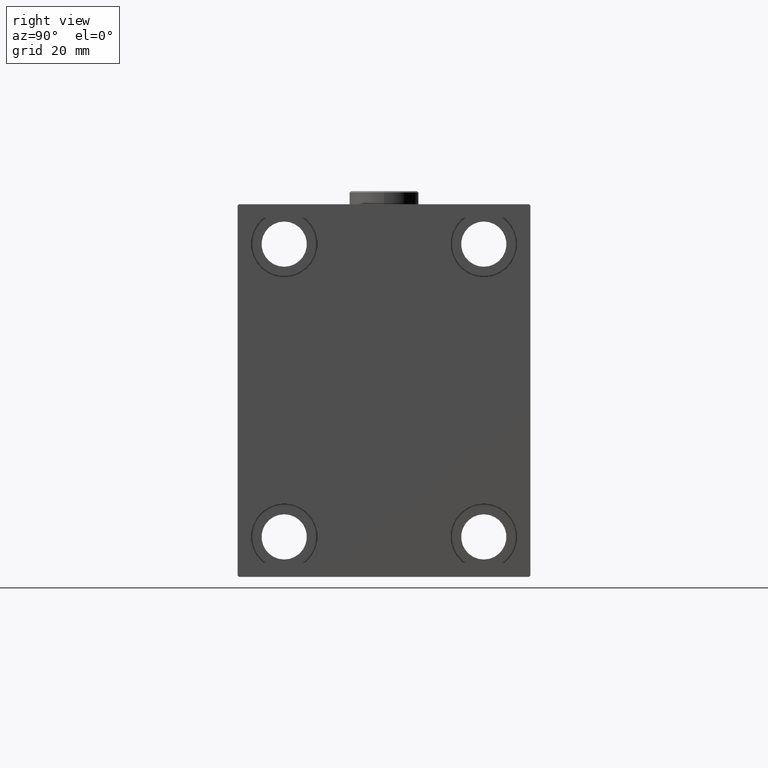
[diagram: clean part render]
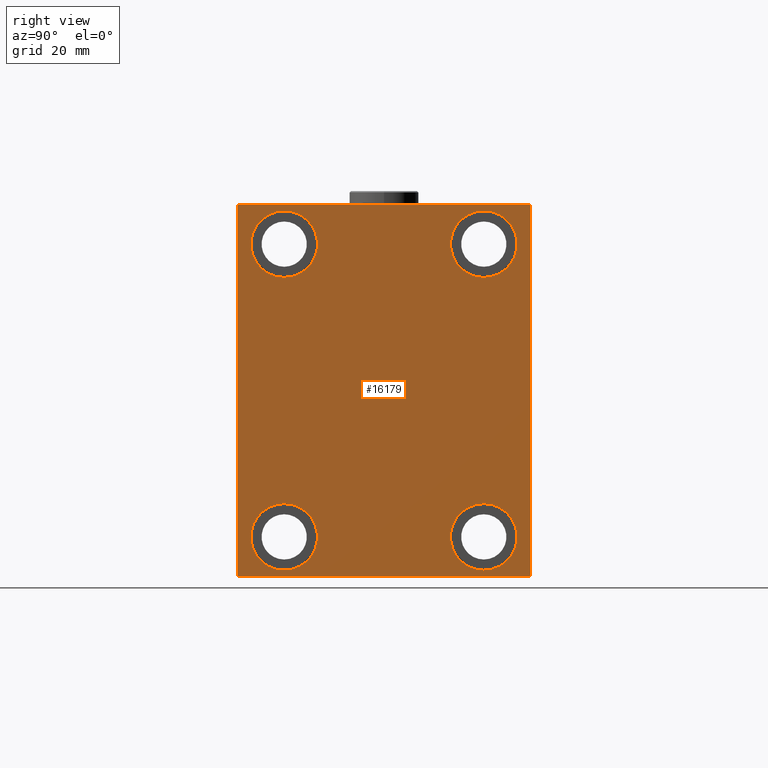
[diagram: same view with one face highlighted and labeled with its STEP entity id]
A machine part, right view. The second image highlights one B-rep face of the part: STEP entity #16179.
In plain terms, the highlighted planar face has unit normal (1, 0, 0).
Its self-contained STEP definition (entity closure, byte-faithful):
#51 = DIRECTION ( 'NONE',  ( -1.000000000000000000, -0.000000000000000000, -0.000000000000000000 ) ) ;
#367 = EDGE_CURVE ( 'NONE', #10291, #41472, #9608, .T. ) ;
#596 = LINE ( 'NONE', #32490, #21334 ) ;
#645 = ORIENTED_EDGE ( 'NONE', *, *, #13586, .T. ) ;
#849 = CARTESIAN_POINT ( 'NONE',  ( 133.0000000000000000, -37.50000000000000711, 67.50000000000000000 ) ) ;
#1073 = CARTESIAN_POINT ( 'NONE',  ( 133.0000000000000000, 37.50000000000000711, 42.50000000000000711 ) ) ;
#1373 = VECTOR ( 'NONE', #1888, 1000.000000000000000 ) ;
#1504 = CARTESIAN_POINT ( 'NONE',  ( 133.0000000000000000, 62.24999999999997868, 62.24999999999997868 ) ) ;
#1557 = CARTESIAN_POINT ( 'NONE',  ( 133.0000000000000000, 54.99999999999999289, 69.49999999999997158 ) ) ;
#1888 = DIRECTION ( 'NONE',  ( 0.000000000000000000, 1.000000000000000000, 2.523234146875355012E-16 ) ) ;
#1948 = DIRECTION ( 'NONE',  ( 0.000000000000000000, -1.982541115402065110E-16, 1.000000000000000000 ) ) ;
#1999 = CARTESIAN_POINT ( 'NONE',  ( 133.0000000000000000, -62.25000000000078160, -62.24999999999904787 ) ) ;
#2105 = ORIENTED_EDGE ( 'NONE', *, *, #43249, .T. ) ;
#2840 = DIRECTION ( 'NONE',  ( 0.000000000000000000, 0.000000000000000000, 1.000000000000000000 ) ) ;
#2938 = EDGE_CURVE ( 'NONE', #37144, #25257, #34096, .T. ) ;
#3545 = DIRECTION ( 'NONE',  ( -1.000000000000000000, -0.000000000000000000, -0.000000000000000000 ) ) ;
#3804 = ORIENTED_EDGE ( 'NONE', *, *, #42134, .T. ) ;
#4181 = VECTOR ( 'NONE', #32489, 1000.000000000000000 ) ;
#4626 = CARTESIAN_POINT ( 'NONE',  ( 133.0000000000000000, 0.000000000000000000, 0.000000000000000000 ) ) ;
#4860 = DIRECTION ( 'NONE',  ( 1.000000000000000000, 0.000000000000000000, 0.000000000000000000 ) ) ;
#4914 = EDGE_CURVE ( 'NONE', #42794, #21232, #30485, .T. ) ;
#5628 = CARTESIAN_POINT ( 'NONE',  ( 133.0000000000000000, 54.49999999999996447, 70.00000000000000000 ) ) ;
#6088 = CIRCLE ( 'NONE', #15180, 12.49999999999999645 ) ;
#6800 = ORIENTED_EDGE ( 'NONE', *, *, #26278, .T. ) ;
#7027 = DIRECTION ( 'NONE',  ( 0.000000000000000000, -0.7071067811865474617, -0.7071067811865474617 ) ) ;
#7832 = VERTEX_POINT ( 'NONE', #8106 ) ;
#8106 = CARTESIAN_POINT ( 'NONE',  ( 133.0000000000000000, -54.50000000000003553, 69.99999999999998579 ) ) ;
#8382 = EDGE_CURVE ( 'NONE', #21232, #9586, #42188, .T. ) ;
#8426 = ORIENTED_EDGE ( 'NONE', *, *, #33643, .T. ) ;
#8948 = AXIS2_PLACEMENT_3D ( 'NONE', #25973, #11670, #22624 ) ;
#9586 = VERTEX_POINT ( 'NONE', #38818 ) ;
#9608 = CIRCLE ( 'NONE', #42289, 12.49999999999999645 ) ;
#9765 = EDGE_CURVE ( 'NONE', #9586, #15924, #34484, .T. ) ;
#9903 = EDGE_CURVE ( 'NONE', #26086, #13473, #37140, .T. ) ;
#10291 = VERTEX_POINT ( 'NONE', #25835 ) ;
#10410 = AXIS2_PLACEMENT_3D ( 'NONE', #46845, #3545, #2840 ) ;
#10551 = ORIENTED_EDGE ( 'NONE', *, *, #2938, .T. ) ;
#10776 = ORIENTED_EDGE ( 'NONE', *, *, #44419, .T. ) ;
#11199 = CARTESIAN_POINT ( 'NONE',  ( 133.0000000000000000, -37.50000000000002132, -54.99999999999999289 ) ) ;
#11284 = ORIENTED_EDGE ( 'NONE', *, *, #9903, .T. ) ;
#11625 = VERTEX_POINT ( 'NONE', #38876 ) ;
#11670 = DIRECTION ( 'NONE',  ( -1.000000000000000000, -0.000000000000000000, -0.000000000000000000 ) ) ;
#11839 = CARTESIAN_POINT ( 'NONE',  ( 133.0000000000000000, -37.50000000000000711, 55.00000000000000711 ) ) ;
#12229 = ORIENTED_EDGE ( 'NONE', *, *, #40233, .T. ) ;
#12707 = CARTESIAN_POINT ( 'NONE',  ( 133.0000000000000000, -37.50000000000002132, -54.99999999999999289 ) ) ;
#13324 = CARTESIAN_POINT ( 'NONE',  ( 133.0000000000000000, 54.50000000000004974, -70.00000000000000000 ) ) ;
#13473 = VERTEX_POINT ( 'NONE', #849 ) ;
#13586 = EDGE_CURVE ( 'NONE', #21357, #11625, #6088, .T. ) ;
#13757 = CARTESIAN_POINT ( 'NONE',  ( 133.0000000000000000, -37.50000000000000711, 55.00000000000000711 ) ) ;
#14060 = CARTESIAN_POINT ( 'NONE',  ( 133.0000000000000000, -55.00000000000000711, 69.50000000000001421 ) ) ;
#15180 = AXIS2_PLACEMENT_3D ( 'NONE', #22959, #37478, #33905 ) ;
#15322 = FACE_OUTER_BOUND ( 'NONE', #26569, .T. ) ;
#15883 = DIRECTION ( 'NONE',  ( -1.000000000000000000, -0.000000000000000000, -0.000000000000000000 ) ) ;
#15924 = VERTEX_POINT ( 'NONE', #13324 ) ;
#16000 = DIRECTION ( 'NONE',  ( -0.000000000000000000, -0.7071067811865474617, 0.7071067811865474617 ) ) ;
#16179 = ADVANCED_FACE ( 'NONE', ( #21996, #30066, #40547, #26513, #15322 ), #37227, .T. ) ;
#16215 = CARTESIAN_POINT ( 'NONE',  ( 133.0000000000000000, 55.00000000000002132, -70.00000000000000000 ) ) ;
#16485 = EDGE_CURVE ( 'NONE', #7832, #42794, #596, .T. ) ;
#16495 = VECTOR ( 'NONE', #1948, 1000.000000000000000 ) ;
#16732 = DIRECTION ( 'NONE',  ( -0.000000000000000000, 0.7071067811865376918, -0.7071067811865574537 ) ) ;
#16983 = DIRECTION ( 'NONE',  ( 0.000000000000000000, 0.000000000000000000, 1.000000000000000000 ) ) ;
#17031 = CARTESIAN_POINT ( 'NONE',  ( 133.0000000000000000, 37.49999999999997868, -54.99999999999999289 ) ) ;
#18199 = ORIENTED_EDGE ( 'NONE', *, *, #4914, .T. ) ;
#18692 = CARTESIAN_POINT ( 'NONE',  ( 133.0000000000000000, 37.49999999999997868, -42.49999999999999289 ) ) ;
#18861 = VECTOR ( 'NONE', #27624, 1000.000000000000000 ) ;
#19413 = CARTESIAN_POINT ( 'NONE',  ( 133.0000000000000000, -55.00000000000000711, -69.50000000000001421 ) ) ;
#19588 = AXIS2_PLACEMENT_3D ( 'NONE', #12707, #41502, #16983 ) ;
#21141 = DIRECTION ( 'NONE',  ( 0.000000000000000000, 0.000000000000000000, 1.000000000000000000 ) ) ;
#21232 = VERTEX_POINT ( 'NONE', #19413 ) ;
#21334 = VECTOR ( 'NONE', #7027, 1000.000000000000114 ) ;
#21357 = VERTEX_POINT ( 'NONE', #1073 ) ;
#21504 = ORIENTED_EDGE ( 'NONE', *, *, #8382, .T. ) ;
#21757 = CARTESIAN_POINT ( 'NONE',  ( 133.0000000000000000, 54.99999999999999289, 70.00000000000000000 ) ) ;
#21822 = CIRCLE ( 'NONE', #44604, 12.49999999999999645 ) ;
#21860 = CIRCLE ( 'NONE', #19588, 12.49999999999999645 ) ;
#21996 = FACE_BOUND ( 'NONE', #28087, .T. ) ;
#22304 = CARTESIAN_POINT ( 'NONE',  ( 133.0000000000000000, -37.50000000000000711, 42.50000000000000711 ) ) ;
#22557 = DIRECTION ( 'NONE',  ( 0.000000000000000000, 0.000000000000000000, 1.000000000000000000 ) ) ;
#22624 = DIRECTION ( 'NONE',  ( 0.000000000000000000, 0.000000000000000000, 1.000000000000000000 ) ) ;
#22959 = CARTESIAN_POINT ( 'NONE',  ( 133.0000000000000000, 37.50000000000000711, 55.00000000000000711 ) ) ;
#22997 = VERTEX_POINT ( 'NONE', #33920 ) ;
#23344 = VECTOR ( 'NONE', #16000, 1000.000000000000114 ) ;
#23506 = VERTEX_POINT ( 'NONE', #24089 ) ;
#24089 = CARTESIAN_POINT ( 'NONE',  ( 133.0000000000000000, 55.00000000000002132, -69.50000000000000000 ) ) ;
#24899 = EDGE_CURVE ( 'NONE', #15924, #23506, #43761, .T. ) ;
#25257 = VERTEX_POINT ( 'NONE', #5628 ) ;
#25835 = CARTESIAN_POINT ( 'NONE',  ( 133.0000000000000000, -37.50000000000002132, -67.49999999999998579 ) ) ;
#25973 = CARTESIAN_POINT ( 'NONE',  ( 133.0000000000000000, 37.50000000000000711, 55.00000000000000711 ) ) ;
#26086 = VERTEX_POINT ( 'NONE', #22304 ) ;
#26097 = VECTOR ( 'NONE', #44239, 1000.000000000000000 ) ;
#26278 = EDGE_CURVE ( 'NONE', #44632, #22997, #35982, .T. ) ;
#26283 = EDGE_LOOP ( 'NONE', ( #645, #37380 ) ) ;
#26513 = FACE_BOUND ( 'NONE', #45560, .T. ) ;
#26569 = EDGE_LOOP ( 'NONE', ( #8426, #39666, #18199, #21504, #42128, #37939, #12229, #10551 ) ) ;
#27622 = AXIS2_PLACEMENT_3D ( 'NONE', #17031, #31565, #35848 ) ;
#27624 = DIRECTION ( 'NONE',  ( 0.000000000000000000, 0.000000000000000000, -1.000000000000000000 ) ) ;
#27985 = CIRCLE ( 'NONE', #10410, 12.49999999999999645 ) ;
#27998 = AXIS2_PLACEMENT_3D ( 'NONE', #13757, #28282, #21141 ) ;
#28087 = EDGE_LOOP ( 'NONE', ( #2105, #6800 ) ) ;
#28282 = DIRECTION ( 'NONE',  ( -1.000000000000000000, -0.000000000000000000, -0.000000000000000000 ) ) ;
#29374 = DIRECTION ( 'NONE',  ( 0.000000000000000000, 0.000000000000000000, -1.000000000000000000 ) ) ;
#30066 = FACE_BOUND ( 'NONE', #33477, .T. ) ;
#30485 = LINE ( 'NONE', #34754, #18861 ) ;
#31565 = DIRECTION ( 'NONE',  ( -1.000000000000000000, -0.000000000000000000, -0.000000000000000000 ) ) ;
#31918 = ORIENTED_EDGE ( 'NONE', *, *, #367, .T. ) ;
#32489 = DIRECTION ( 'NONE',  ( 0.000000000000000000, -1.000000000000000000, -1.261617073437677999E-16 ) ) ;
#32490 = CARTESIAN_POINT ( 'NONE',  ( 133.0000000000000000, -62.25000000000000711, 62.25000000000000711 ) ) ;
#32503 = CIRCLE ( 'NONE', #8948, 12.49999999999999645 ) ;
#32951 = LINE ( 'NONE', #21757, #4181 ) ;
#33477 = EDGE_LOOP ( 'NONE', ( #11284, #10776 ) ) ;
#33643 = EDGE_CURVE ( 'NONE', #25257, #7832, #32951, .T. ) ;
#33905 = DIRECTION ( 'NONE',  ( 0.000000000000000000, 0.000000000000000000, 1.000000000000000000 ) ) ;
#33920 = CARTESIAN_POINT ( 'NONE',  ( 133.0000000000000000, 37.49999999999997868, -67.49999999999998579 ) ) ;
#34007 = VECTOR ( 'NONE', #16732, 999.9999999999998863 ) ;
#34096 = LINE ( 'NONE', #1504, #23344 ) ;
#34310 = LINE ( 'NONE', #16215, #16495 ) ;
#34484 = LINE ( 'NONE', #42083, #1373 ) ;
#34754 = CARTESIAN_POINT ( 'NONE',  ( 133.0000000000000000, -55.00000000000000711, 69.99999999999998579 ) ) ;
#35848 = DIRECTION ( 'NONE',  ( 0.000000000000000000, 0.000000000000000000, 1.000000000000000000 ) ) ;
#35982 = CIRCLE ( 'NONE', #27622, 12.49999999999999645 ) ;
#37140 = CIRCLE ( 'NONE', #27998, 12.49999999999999645 ) ;
#37144 = VERTEX_POINT ( 'NONE', #1557 ) ;
#37227 = PLANE ( 'NONE',  #44895 ) ;
#37380 = ORIENTED_EDGE ( 'NONE', *, *, #45175, .T. ) ;
#37478 = DIRECTION ( 'NONE',  ( -1.000000000000000000, -0.000000000000000000, -0.000000000000000000 ) ) ;
#37939 = ORIENTED_EDGE ( 'NONE', *, *, #24899, .T. ) ;
#38818 = CARTESIAN_POINT ( 'NONE',  ( 133.0000000000000000, -54.50000000000000711, -70.00000000000002842 ) ) ;
#38876 = CARTESIAN_POINT ( 'NONE',  ( 133.0000000000000000, 37.50000000000000711, 67.50000000000000000 ) ) ;
#39666 = ORIENTED_EDGE ( 'NONE', *, *, #16485, .T. ) ;
#40233 = EDGE_CURVE ( 'NONE', #23506, #37144, #34310, .T. ) ;
#40547 = FACE_BOUND ( 'NONE', #26283, .T. ) ;
#41472 = VERTEX_POINT ( 'NONE', #42383 ) ;
#41502 = DIRECTION ( 'NONE',  ( -1.000000000000000000, -0.000000000000000000, -0.000000000000000000 ) ) ;
#42083 = CARTESIAN_POINT ( 'NONE',  ( 133.0000000000000000, -55.00000000000000711, -70.00000000000002842 ) ) ;
#42128 = ORIENTED_EDGE ( 'NONE', *, *, #9765, .T. ) ;
#42134 = EDGE_CURVE ( 'NONE', #41472, #10291, #21860, .T. ) ;
#42188 = LINE ( 'NONE', #1999, #34007 ) ;
#42289 = AXIS2_PLACEMENT_3D ( 'NONE', #11199, #51, #44269 ) ;
#42383 = CARTESIAN_POINT ( 'NONE',  ( 133.0000000000000000, -37.50000000000002132, -42.49999999999999289 ) ) ;
#42794 = VERTEX_POINT ( 'NONE', #14060 ) ;
#43249 = EDGE_CURVE ( 'NONE', #22997, #44632, #27985, .T. ) ;
#43761 = LINE ( 'NONE', #44008, #26097 ) ;
#44008 = CARTESIAN_POINT ( 'NONE',  ( 133.0000000000000000, 62.25000000000153477, -62.24999999999808153 ) ) ;
#44239 = DIRECTION ( 'NONE',  ( -0.000000000000000000, 0.7071067811865279218, 0.7071067811865671127 ) ) ;
#44269 = DIRECTION ( 'NONE',  ( 0.000000000000000000, 0.000000000000000000, 1.000000000000000000 ) ) ;
#44419 = EDGE_CURVE ( 'NONE', #13473, #26086, #21822, .T. ) ;
#44604 = AXIS2_PLACEMENT_3D ( 'NONE', #11839, #15883, #22557 ) ;
#44632 = VERTEX_POINT ( 'NONE', #18692 ) ;
#44895 = AXIS2_PLACEMENT_3D ( 'NONE', #4626, #4860, #29374 ) ;
#45175 = EDGE_CURVE ( 'NONE', #11625, #21357, #32503, .T. ) ;
#45560 = EDGE_LOOP ( 'NONE', ( #31918, #3804 ) ) ;
#46845 = CARTESIAN_POINT ( 'NONE',  ( 133.0000000000000000, 37.49999999999997868, -54.99999999999999289 ) ) ;